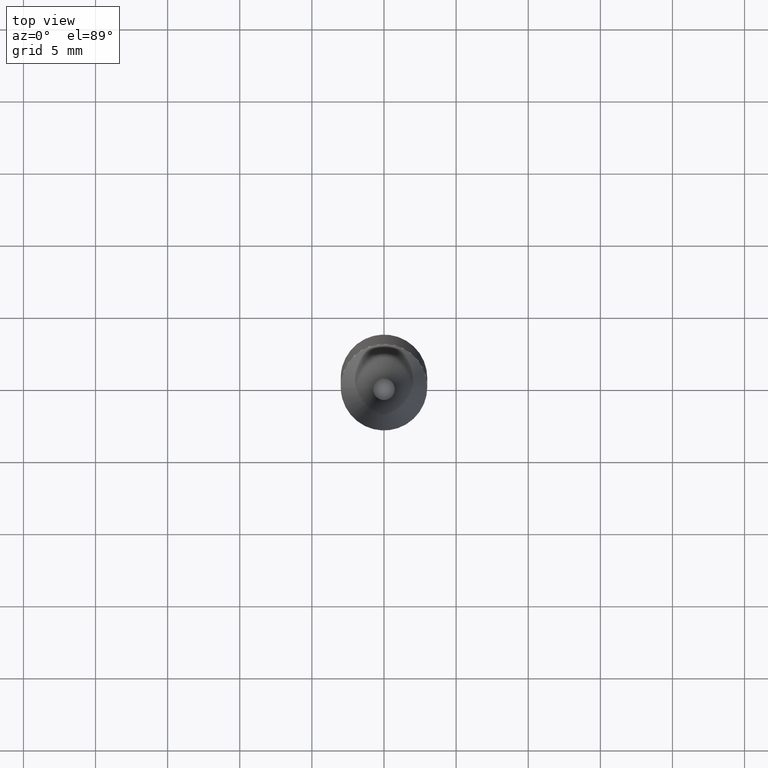
[diagram: clean part render]
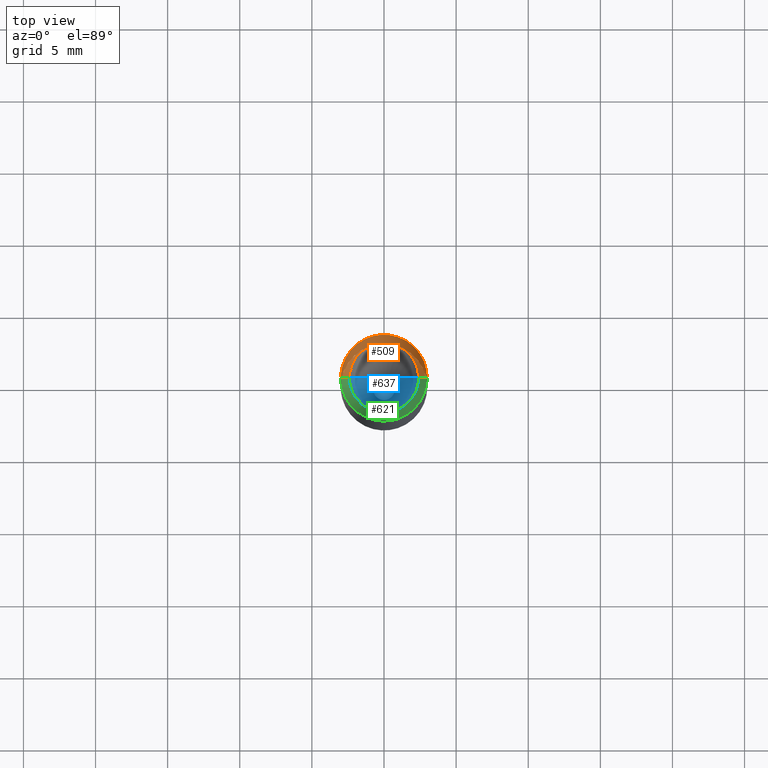
[diagram: same view with three faces highlighted in distinct colors, each labeled with its STEP entity id]
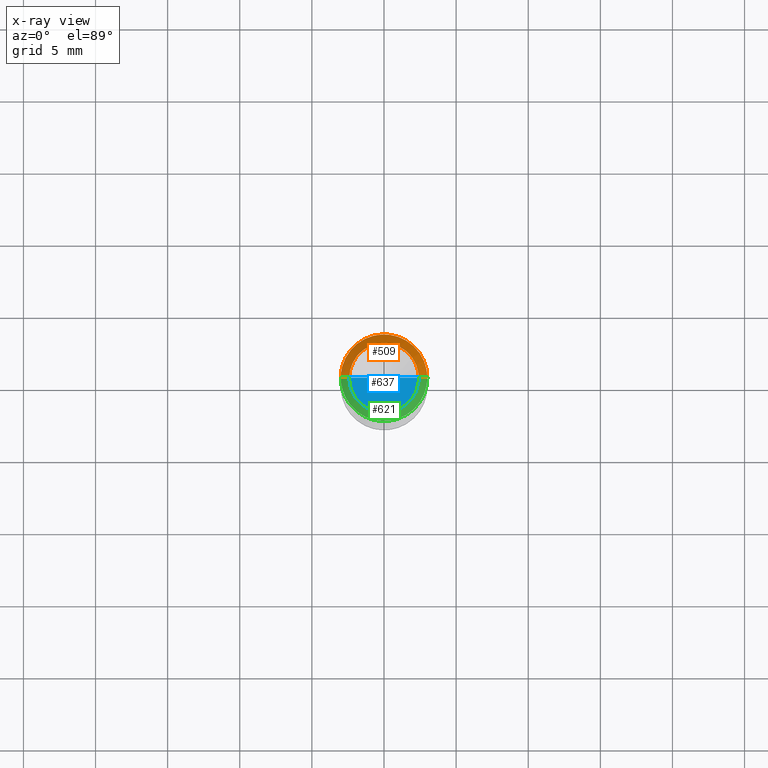
[diagram: x-ray of the same camera — body ghosted, the three highlighted faces saturated]
A machine part, top view with three faces highlighted in distinct colors.
The next image is the same camera in x-ray (body ghosted, the three faces saturated) — at least one of them is partly hidden behind the body in this view.
Their STEP definitions:

[orange] entity #509 — the highlighted face is a freeform B-spline surface patch.
#278=CARTESIAN_POINT('',(3.0,0.0,37.002));
#279=CARTESIAN_POINT('',(3.0,3.0,37.002));
#280=CARTESIAN_POINT('',(0.0,3.0,37.002));
#281=CARTESIAN_POINT('',(-3.0,3.0,37.002));
#282=CARTESIAN_POINT('',(-3.0,0.0,37.002));
#283=CARTESIAN_POINT('',(2.4,0.0,37.602));
#284=CARTESIAN_POINT('',(2.4,2.4,37.602));
#285=CARTESIAN_POINT('',(0.0,2.4,37.602));
#286=CARTESIAN_POINT('',(-2.4,2.4,37.602));
#287=CARTESIAN_POINT('',(-2.4,0.0,37.602));
#490=(
BOUNDED_SURFACE()
B_SPLINE_SURFACE(1,2,(
(#278,#279,#280,#281,#282),
(#283,#284,#285,#286,#287)
), .UNSPECIFIED.,.F.,.F.,.F.)
B_SPLINE_SURFACE_WITH_KNOTS((2,2),(3,2,3),(
0.0,1.0),(
0.0,0.5,1.0), .UNSPECIFIED.)
GEOMETRIC_REPRESENTATION_ITEM()
RATIONAL_B_SPLINE_SURFACE(((1.0,0.707106781187,1.0,0.707106781187,1.0),
(1.0,0.707106781187,1.0,0.707106781187,1.0)
))
REPRESENTATION_ITEM('')
SURFACE()
);
#491=(
BOUNDED_CURVE()
B_SPLINE_CURVE(1,(#283,#278),.UNSPECIFIED.,.F.,.F.)
B_SPLINE_CURVE_WITH_KNOTS((2,2),
(0.0,1.0),.UNSPECIFIED.)
CURVE()
GEOMETRIC_REPRESENTATION_ITEM()
RATIONAL_B_SPLINE_CURVE((1.0,1.0))
REPRESENTATION_ITEM('')
);
#492=(
BOUNDED_CURVE()
B_SPLINE_CURVE(2,(#278,#279,#280,#281,#282),.UNSPECIFIED.,.F.,.F.)
B_SPLINE_CURVE_WITH_KNOTS((3,2,3),
(0.0,0.5,1.0),.UNSPECIFIED.)
CURVE()
GEOMETRIC_REPRESENTATION_ITEM()
RATIONAL_B_SPLINE_CURVE((1.0,0.707106781187,1.0,0.707106781187,1.0))
REPRESENTATION_ITEM('')
);
#493=(
BOUNDED_CURVE()
B_SPLINE_CURVE(1,(#282,#287),.UNSPECIFIED.,.F.,.F.)
B_SPLINE_CURVE_WITH_KNOTS((2,2),
(0.0,1.0),.UNSPECIFIED.)
CURVE()
GEOMETRIC_REPRESENTATION_ITEM()
RATIONAL_B_SPLINE_CURVE((1.0,1.0))
REPRESENTATION_ITEM('')
);
#494=(
BOUNDED_CURVE()
B_SPLINE_CURVE(2,(#287,#286,#285,#284,#283),.UNSPECIFIED.,.F.,.F.)
B_SPLINE_CURVE_WITH_KNOTS((3,2,3),
(0.0,0.5,1.0),.UNSPECIFIED.)
CURVE()
GEOMETRIC_REPRESENTATION_ITEM()
RATIONAL_B_SPLINE_CURVE((1.0,0.707106781187,1.0,0.707106781187,1.0))
REPRESENTATION_ITEM('')
);
#495=VERTEX_POINT('',#278);
#496=VERTEX_POINT('',#282);
#497=VERTEX_POINT('',#283);
#498=VERTEX_POINT('',#287);
#499=EDGE_CURVE('',#497,#495,#491,.T.);
#500=EDGE_CURVE('',#495,#496,#492,.T.);
#501=EDGE_CURVE('',#496,#498,#493,.T.);
#502=EDGE_CURVE('',#498,#497,#494,.T.);
#503=ORIENTED_EDGE('',*,*,#499,.T.);
#504=ORIENTED_EDGE('',*,*,#500,.T.);
#505=ORIENTED_EDGE('',*,*,#501,.T.);
#506=ORIENTED_EDGE('',*,*,#502,.T.);
#507=EDGE_LOOP('',(#503,#504,#505,#506));
#508=FACE_OUTER_BOUND('',#507,.T.);
#509=ADVANCED_FACE('',(#508),#490,.T.);

[blue] entity #637 — the highlighted face is a freeform B-spline surface patch.
#283=CARTESIAN_POINT('',(2.4,0.0,37.602));
#287=CARTESIAN_POINT('',(-2.4,0.0,37.602));
#288=CARTESIAN_POINT('',(0.0,0.0,37.602));
#298=CARTESIAN_POINT('',(-2.4,-2.4,37.602));
#299=CARTESIAN_POINT('',(0.0,-2.4,37.602));
#300=CARTESIAN_POINT('',(2.4,-2.4,37.602));
#622=(
BOUNDED_SURFACE()
B_SPLINE_SURFACE(1,2,(
(#287,#298,#299,#300,#283),
(#288,#288,#288,#288,#288)
), .UNSPECIFIED.,.F.,.F.,.F.)
B_SPLINE_SURFACE_WITH_KNOTS((2,2),(3,2,3),(
0.0,1.0),(
0.0,0.5,1.0), .UNSPECIFIED.)
GEOMETRIC_REPRESENTATION_ITEM()
RATIONAL_B_SPLINE_SURFACE(((1.0,0.707106781187,1.0,0.707106781187,1.0),
(1.0,0.707106781187,1.0,0.707106781187,1.0)
))
REPRESENTATION_ITEM('')
SURFACE()
);
#623=(
BOUNDED_CURVE()
B_SPLINE_CURVE(1,(#288,#283),.UNSPECIFIED.,.F.,.F.)
B_SPLINE_CURVE_WITH_KNOTS((2,2),
(0.0,1.0),.UNSPECIFIED.)
CURVE()
GEOMETRIC_REPRESENTATION_ITEM()
RATIONAL_B_SPLINE_CURVE((1.0,1.0))
REPRESENTATION_ITEM('')
);
#624=(
BOUNDED_CURVE()
B_SPLINE_CURVE(2,(#283,#300,#299,#298,#287),.UNSPECIFIED.,.F.,.F.)
B_SPLINE_CURVE_WITH_KNOTS((3,2,3),
(0.0,0.5,1.0),.UNSPECIFIED.)
CURVE()
GEOMETRIC_REPRESENTATION_ITEM()
RATIONAL_B_SPLINE_CURVE((1.0,0.707106781187,1.0,0.707106781187,1.0))
REPRESENTATION_ITEM('')
);
#625=(
BOUNDED_CURVE()
B_SPLINE_CURVE(1,(#287,#288),.UNSPECIFIED.,.F.,.F.)
B_SPLINE_CURVE_WITH_KNOTS((2,2),
(0.0,1.0),.UNSPECIFIED.)
CURVE()
GEOMETRIC_REPRESENTATION_ITEM()
RATIONAL_B_SPLINE_CURVE((1.0,1.0))
REPRESENTATION_ITEM('')
);
#626=VERTEX_POINT('',#283);
#627=VERTEX_POINT('',#287);
#628=VERTEX_POINT('',#288);
#629=EDGE_CURVE('',#628,#626,#623,.T.);
#630=EDGE_CURVE('',#626,#627,#624,.T.);
#631=EDGE_CURVE('',#627,#628,#625,.T.);
#632=ORIENTED_EDGE('',*,*,#629,.T.);
#633=ORIENTED_EDGE('',*,*,#630,.T.);
#634=ORIENTED_EDGE('',*,*,#631,.T.);
#635=EDGE_LOOP('',(#632,#633,#634));
#636=FACE_OUTER_BOUND('',#635,.T.);
#637=ADVANCED_FACE('',(#636),#622,.T.);

[green] entity #621 — the highlighted face is a freeform B-spline surface patch.
#278=CARTESIAN_POINT('',(3.0,0.0,37.002));
#282=CARTESIAN_POINT('',(-3.0,0.0,37.002));
#283=CARTESIAN_POINT('',(2.4,0.0,37.602));
#287=CARTESIAN_POINT('',(-2.4,0.0,37.602));
#295=CARTESIAN_POINT('',(-3.0,-3.0,37.002));
#296=CARTESIAN_POINT('',(0.0,-3.0,37.002));
#297=CARTESIAN_POINT('',(3.0,-3.0,37.002));
#298=CARTESIAN_POINT('',(-2.4,-2.4,37.602));
#299=CARTESIAN_POINT('',(0.0,-2.4,37.602));
#300=CARTESIAN_POINT('',(2.4,-2.4,37.602));
#602=(
BOUNDED_SURFACE()
B_SPLINE_SURFACE(1,2,(
(#282,#295,#296,#297,#278),
(#287,#298,#299,#300,#283)
), .UNSPECIFIED.,.F.,.F.,.F.)
B_SPLINE_SURFACE_WITH_KNOTS((2,2),(3,2,3),(
0.0,1.0),(
0.0,0.5,1.0), .UNSPECIFIED.)
GEOMETRIC_REPRESENTATION_ITEM()
RATIONAL_B_SPLINE_SURFACE(((1.0,0.707106781187,1.0,0.707106781187,1.0),
(1.0,0.707106781187,1.0,0.707106781187,1.0)
))
REPRESENTATION_ITEM('')
SURFACE()
);
#603=(
BOUNDED_CURVE()
B_SPLINE_CURVE(2,(#287,#298,#299,#300,#283),.UNSPECIFIED.,.F.,.F.)
B_SPLINE_CURVE_WITH_KNOTS((3,2,3),
(0.0,0.5,1.0),.UNSPECIFIED.)
CURVE()
GEOMETRIC_REPRESENTATION_ITEM()
RATIONAL_B_SPLINE_CURVE((1.0,0.707106781187,1.0,0.707106781187,1.0))
REPRESENTATION_ITEM('')
);
#604=(
BOUNDED_CURVE()
B_SPLINE_CURVE(1,(#283,#278),.UNSPECIFIED.,.F.,.F.)
B_SPLINE_CURVE_WITH_KNOTS((2,2),
(0.0,1.0),.UNSPECIFIED.)
CURVE()
GEOMETRIC_REPRESENTATION_ITEM()
RATIONAL_B_SPLINE_CURVE((1.0,1.0))
REPRESENTATION_ITEM('')
);
#605=(
BOUNDED_CURVE()
B_SPLINE_CURVE(2,(#278,#297,#296,#295,#282),.UNSPECIFIED.,.F.,.F.)
B_SPLINE_CURVE_WITH_KNOTS((3,2,3),
(0.0,0.5,1.0),.UNSPECIFIED.)
CURVE()
GEOMETRIC_REPRESENTATION_ITEM()
RATIONAL_B_SPLINE_CURVE((1.0,0.707106781187,1.0,0.707106781187,1.0))
REPRESENTATION_ITEM('')
);
#606=(
BOUNDED_CURVE()
B_SPLINE_CURVE(1,(#282,#287),.UNSPECIFIED.,.F.,.F.)
B_SPLINE_CURVE_WITH_KNOTS((2,2),
(0.0,1.0),.UNSPECIFIED.)
CURVE()
GEOMETRIC_REPRESENTATION_ITEM()
RATIONAL_B_SPLINE_CURVE((1.0,1.0))
REPRESENTATION_ITEM('')
);
#607=VERTEX_POINT('',#278);
#608=VERTEX_POINT('',#282);
#609=VERTEX_POINT('',#283);
#610=VERTEX_POINT('',#287);
#611=EDGE_CURVE('',#610,#609,#603,.T.);
#612=EDGE_CURVE('',#609,#607,#604,.T.);
#613=EDGE_CURVE('',#607,#608,#605,.T.);
#614=EDGE_CURVE('',#608,#610,#606,.T.);
#615=ORIENTED_EDGE('',*,*,#611,.T.);
#616=ORIENTED_EDGE('',*,*,#612,.T.);
#617=ORIENTED_EDGE('',*,*,#613,.T.);
#618=ORIENTED_EDGE('',*,*,#614,.T.);
#619=EDGE_LOOP('',(#615,#616,#617,#618));
#620=FACE_OUTER_BOUND('',#619,.T.);
#621=ADVANCED_FACE('',(#620),#602,.T.);